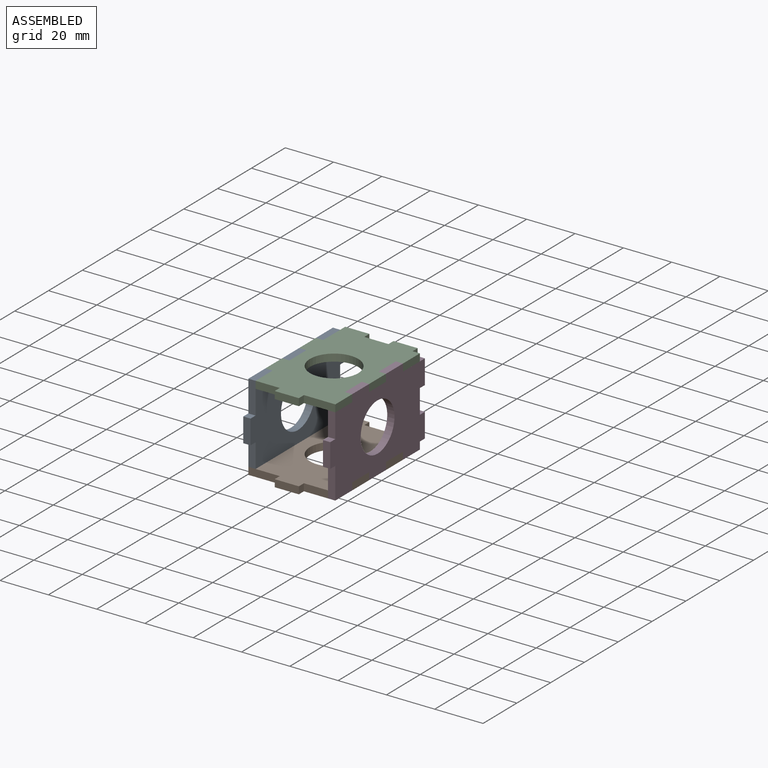
[diagram: assembled view]
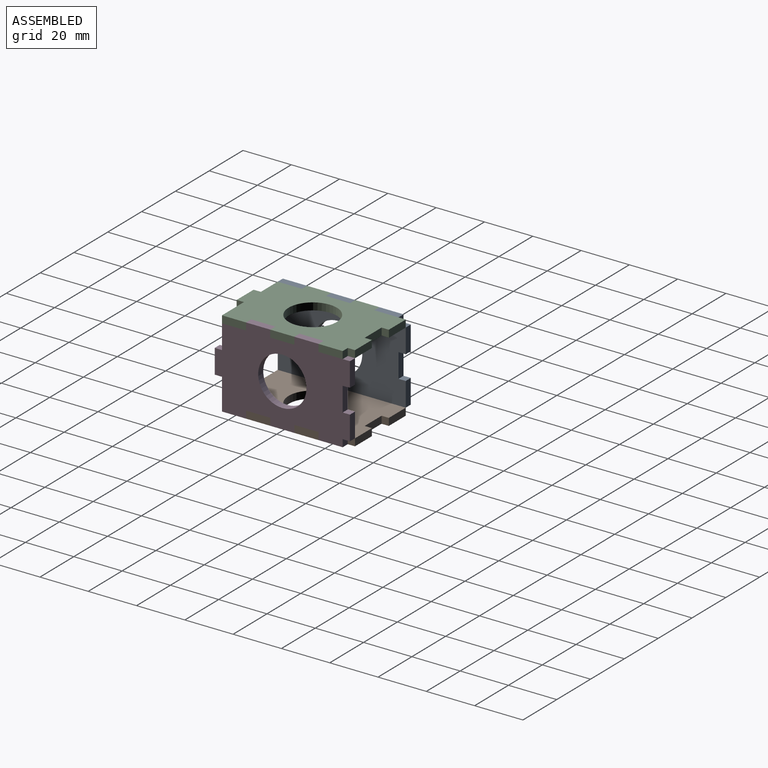
[diagram: assembled view, second angle]
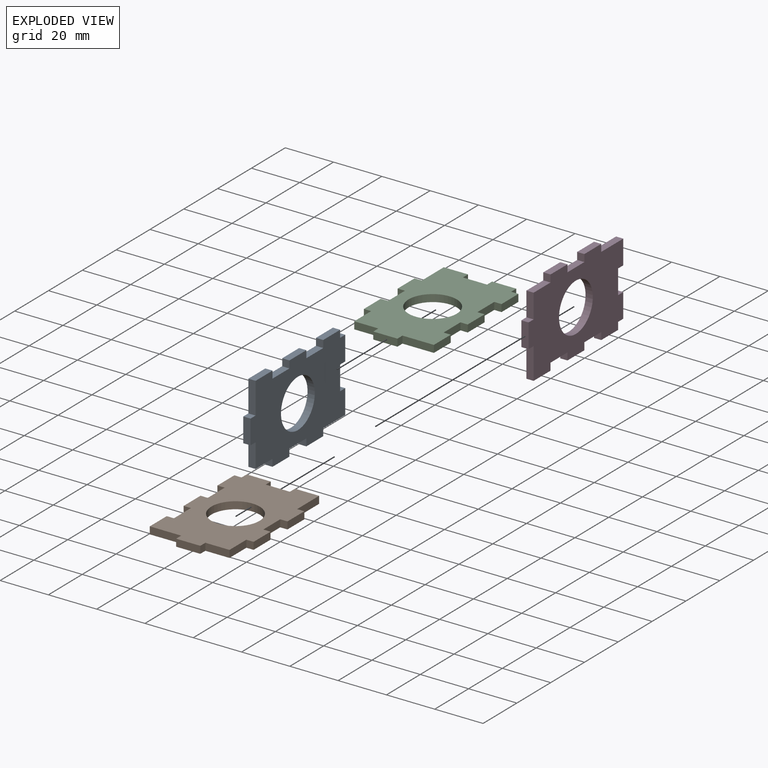
[diagram: exploded view]
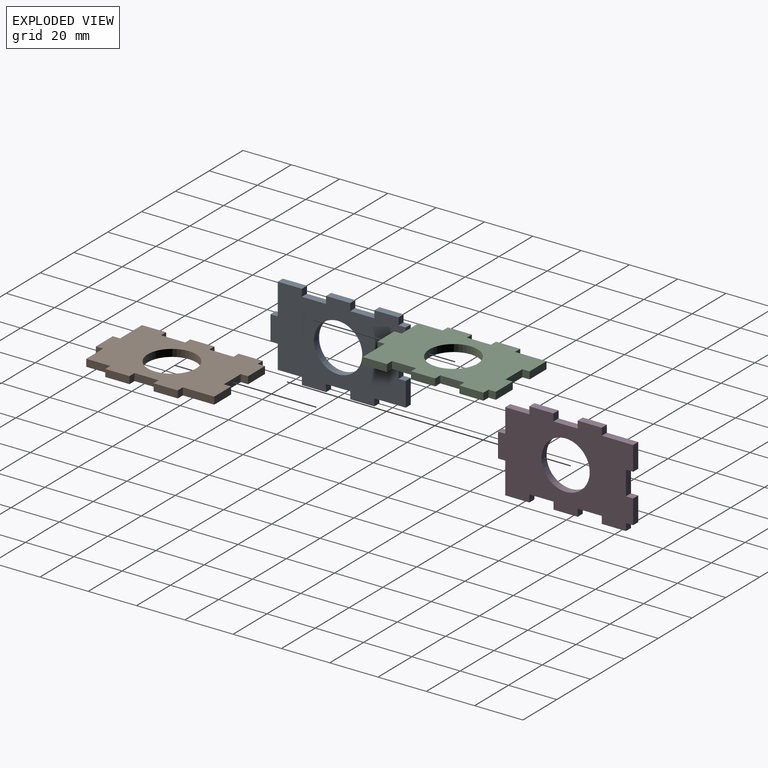
[diagram: exploded view, second angle]
ASSEMBLY  parts=4 mates=3
PART A: 33 faces, bbox 36x56x3 mm
  f0: plane 3x3mm, normal (0,-1,0), area 9mm2, adj f1,f29,f31,f32
  f1: plane 10x3mm, normal (-1,0,0), area 30mm2, adj f0,f2,f31,f32
  f2: plane 3x3mm, normal (0,1,0), area 9mm2, adj f1,f3,f31,f32
  f3: plane 10x3mm, normal (-1,0,0), area 30mm2, adj f2,f4,f31,f32
  f4: plane 3x3mm, normal (0,-1,0), area 9mm2, adj f3,f5,f31,f32
  f5: plane 10x3mm, normal (-1,0,0), area 30mm2, adj f4,f6,f31,f32
  f6: plane 3x3mm, normal (0,1,0), area 9mm2, adj f5,f7,f31,f32
  f7: plane 10x3mm, normal (-1,0,0), area 30mm2, adj f6,f8,f31,f32
  f8: plane 13x3mm, normal (0,-1,0), area 39mm2, adj f7,f9,f31,f32
  f9: plane 3x3mm, normal (-1,0,0), area 9mm2, adj f8,f10,f31,f32
  f10: plane 10x3mm, normal (0,-1,0), area 30mm2, adj f9,f11,f31,f32
  f11: plane 3x3mm, normal (1,0,0), area 9mm2, adj f10,f12,f31,f32
  f12: plane 10x3mm, normal (0,-1,0), area 30mm2, adj f11,f13,f31,f32
  f13: plane 10x3mm, normal (1,0,0), area 30mm2, adj f12,f14,f31,f32
  f14: plane 3x3mm, normal (0,-1,0), area 9mm2, adj f13,f15,f31,f32
  f15: plane 10x3mm, normal (1,0,0), area 30mm2, adj f14,f16,f31,f32
  f16: plane 3x3mm, normal (0,1,0), area 9mm2, adj f15,f17,f31,f32
  f17: plane 10x3mm, normal (1,0,0), area 30mm2, adj f16,f18,f31,f32
  f18: plane 3x3mm, normal (0,-1,0), area 9mm2, adj f17,f19,f31,f32
  f19: plane 10x3mm, normal (1,0,0), area 30mm2, adj f18,f20,f31,f32
  f20: plane 3x3mm, normal (0,1,0), area 9mm2, adj f19,f21,f31,f32
  f21: plane 13x3mm, normal (1,0,0), area 39mm2, adj f20,f22,f31,f32
  f22: plane 10x3mm, normal (0,1,0), area 30mm2, adj f21,f23,f31,f32
  f23: plane 3x3mm, normal (-1,0,0), area 9mm2, adj f22,f24,f31,f32
  f24: plane 10x3mm, normal (0,1,0), area 30mm2, adj f23,f25,f31,f32
  f25: plane 3x3mm, normal (1,0,0), area 9mm2, adj f24,f26,f31,f32
  f26: plane 10x3mm, normal (0,1,0), area 30mm2, adj f25,f27,f31,f32
  f27: plane 3x3mm, normal (-1,0,0), area 9mm2, adj f26,f28,f31,f32
  f28: plane 3x3mm, normal (0,1,0), area 9mm2, adj f27,f29,f31,f32
  f29: plane 10x3mm, normal (-1,0,0), area 30mm2, adj f0,f28,f31,f32
  f30: cylinder r=10mm len=20mm, axis (0,0,-1), area 188.5mm2, adj f31,f32
  f31: plane 56x36mm, normal (0,0,1), area 1425.8mm2, adj f0,f1,f2,f3,f4,f5,f6,f7
  f32: plane 56x36mm, normal (0,0,-1), area 1425.8mm2, adj f0,f1,f2,f3,f4,f5,f6,f7
PART B: same geometry as A
PART C: same geometry as A
PART D: same geometry as A
PLACE A rot(axis=(0,1,0),90deg) t=(-18.24,20.78,35.63)mm
PLACE B t=(-0.24,20.78,17.63)mm
PLACE C rot(axis=(0,-1,0),180deg) t=(-0.24,20.78,53.63)mm
PLACE D rot(axis=(0,-1,0),90deg) t=(17.76,20.78,35.63)mm
MATE fastened D.f14 <-> C.f6  axis (0,-1,0) through (16.26,5.78,52.13)mm
MATE fastened B.f6 <-> A.f14  axis (0,1,0) through (-16.74,5.78,19.13)mm
MATE fastened C.f14 <-> A.f6  axis (0,-1,0) through (-16.74,5.78,52.13)mm
